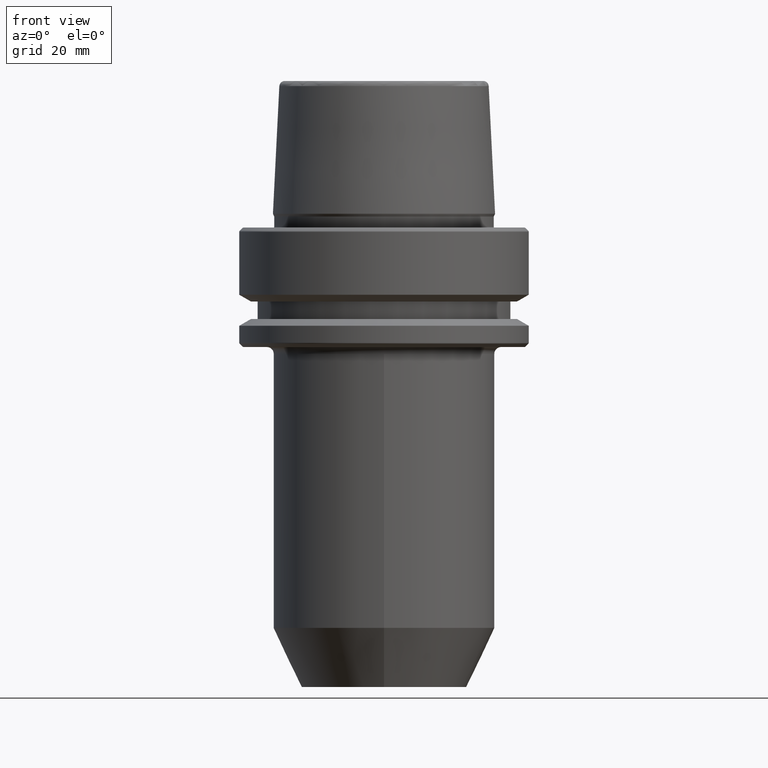
[diagram: clean part render]
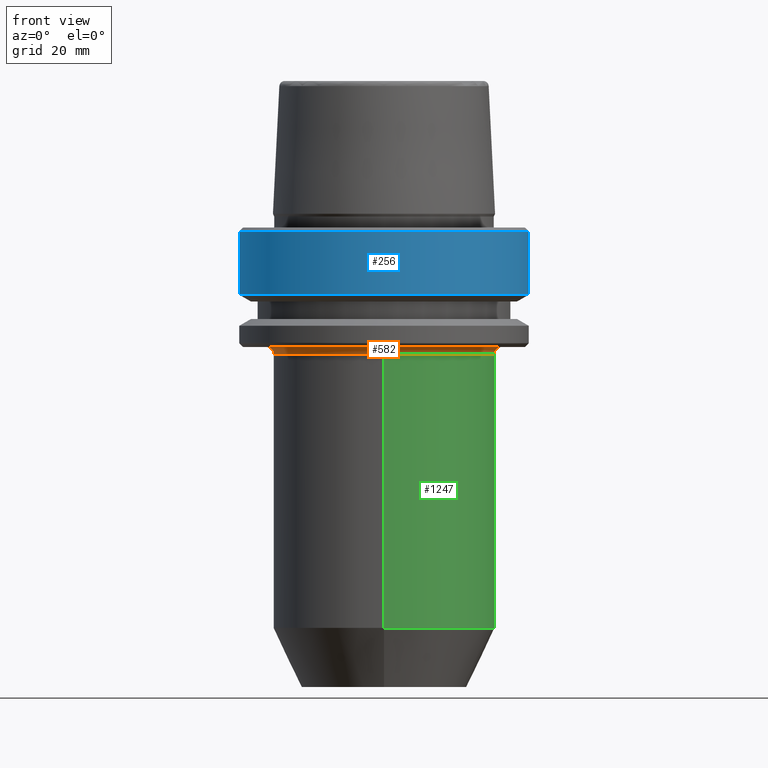
[diagram: same view with three faces highlighted in distinct colors, each labeled with its STEP entity id]
A machine part, front view with three faces highlighted in distinct colors.
Their STEP definitions:

[orange] entity #582 — the highlighted toroidal blend (fillet) surface has major radius 25.5 mm and minor (blend) radius 1.5 mm.
#24 = AXIS2_PLACEMENT_3D ( 'NONE', #739, #143, #836 ) ;
#29 = CARTESIAN_POINT ( 'NONE',  ( 25.50000000000000400, 4.964784320867637100E-017, -27.50000000000001100 ) ) ;
#34 = FACE_OUTER_BOUND ( 'NONE', #1199, .T. ) ;
#38 = AXIS2_PLACEMENT_3D ( 'NONE', #823, #286, #404 ) ;
#86 = DIRECTION ( 'NONE',  ( 1.000000000000000000, 0.0000000000000000000, 0.0000000000000000000 ) ) ;
#128 = CARTESIAN_POINT ( 'NONE',  ( 24.00000000000000000, 4.964784320867637100E-017, -27.50000000000001100 ) ) ;
#138 = ORIENTED_EDGE ( 'NONE', *, *, #702, .T. ) ;
#140 = CARTESIAN_POINT ( 'NONE',  ( 25.50000000000000400, 4.964784320867637100E-017, -26.00000000000001100 ) ) ;
#143 = DIRECTION ( 'NONE',  ( 0.0000000000000000000, 0.0000000000000000000, -1.000000000000000000 ) ) ;
#156 = CARTESIAN_POINT ( 'NONE',  ( -25.50000000000000400, 3.172497181034427300E-015, -27.50000000000001100 ) ) ;
#198 = CIRCLE ( 'NONE', #458, 24.00000000000000000 ) ;
#208 = DIRECTION ( 'NONE',  ( -0.0000000000000000000, -0.0000000000000000000, 1.000000000000000000 ) ) ;
#228 = EDGE_CURVE ( 'NONE', #1061, #1128, #475, .T. ) ;
#247 = DIRECTION ( 'NONE',  ( -1.000000000000000000, 1.224646799147352000E-016, 0.0000000000000000000 ) ) ;
#270 = EDGE_CURVE ( 'NONE', #558, #1061, #378, .T. ) ;
#286 = DIRECTION ( 'NONE',  ( -0.0000000000000000000, -0.0000000000000000000, 1.000000000000000000 ) ) ;
#345 = CARTESIAN_POINT ( 'NONE',  ( 2.939152317953647900E-015, -24.00000000000000000, -27.50000000000001100 ) ) ;
#378 = CIRCLE ( 'NONE', #435, 25.50000000000000400 ) ;
#382 = DIRECTION ( 'NONE',  ( 0.0000000000000000000, 0.0000000000000000000, -1.000000000000000000 ) ) ;
#404 = DIRECTION ( 'NONE',  ( 1.000000000000000000, 0.0000000000000000000, 0.0000000000000000000 ) ) ;
#424 = AXIS2_PLACEMENT_3D ( 'NONE', #156, #846, #247 ) ;
#431 = EDGE_CURVE ( 'NONE', #1128, #471, #198, .T. ) ;
#435 = AXIS2_PLACEMENT_3D ( 'NONE', #800, #208, #902 ) ;
#458 = AXIS2_PLACEMENT_3D ( 'NONE', #1260, #683, #86 ) ;
#471 = VERTEX_POINT ( 'NONE', #345 ) ;
#475 = CIRCLE ( 'NONE', #569, 1.500000000000001300 ) ;
#509 = CIRCLE ( 'NONE', #424, 1.500000000000001300 ) ;
#558 = VERTEX_POINT ( 'NONE', #1148 ) ;
#569 = AXIS2_PLACEMENT_3D ( 'NONE', #29, #979, #382 ) ;
#582 = ADVANCED_FACE ( 'NONE', ( #34 ), #769, .F. ) ;
#616 = CARTESIAN_POINT ( 'NONE',  ( -24.00000000000000000, 3.080648671098375900E-015, -27.50000000000001100 ) ) ;
#643 = VERTEX_POINT ( 'NONE', #616 ) ;
#683 = DIRECTION ( 'NONE',  ( 0.0000000000000000000, 0.0000000000000000000, -1.000000000000000000 ) ) ;
#702 = EDGE_CURVE ( 'NONE', #558, #643, #509, .T. ) ;
#739 = CARTESIAN_POINT ( 'NONE',  ( 0.0000000000000000000, 4.964784320867637100E-017, -27.50000000000001100 ) ) ;
#748 = ORIENTED_EDGE ( 'NONE', *, *, #828, .F. ) ;
#769 = TOROIDAL_SURFACE ( 'NONE', #38, 25.50000000000000400, 1.500000000000000000 ) ;
#800 = CARTESIAN_POINT ( 'NONE',  ( 0.0000000000000000000, 4.964784320867637100E-017, -26.00000000000001100 ) ) ;
#823 = CARTESIAN_POINT ( 'NONE',  ( 0.0000000000000000000, 4.964784320867637100E-017, -27.50000000000001100 ) ) ;
#828 = EDGE_CURVE ( 'NONE', #471, #643, #1235, .T. ) ;
#836 = DIRECTION ( 'NONE',  ( 1.000000000000000000, 0.0000000000000000000, 0.0000000000000000000 ) ) ;
#845 = ORIENTED_EDGE ( 'NONE', *, *, #431, .F. ) ;
#846 = DIRECTION ( 'NONE',  ( 1.224646799147353200E-016, 1.000000000000000000, 0.0000000000000000000 ) ) ;
#902 = DIRECTION ( 'NONE',  ( 1.000000000000000000, 0.0000000000000000000, 0.0000000000000000000 ) ) ;
#979 = DIRECTION ( 'NONE',  ( 0.0000000000000000000, -1.000000000000000000, 0.0000000000000000000 ) ) ;
#1048 = ORIENTED_EDGE ( 'NONE', *, *, #270, .F. ) ;
#1061 = VERTEX_POINT ( 'NONE', #140 ) ;
#1115 = ORIENTED_EDGE ( 'NONE', *, *, #228, .F. ) ;
#1128 = VERTEX_POINT ( 'NONE', #128 ) ;
#1148 = CARTESIAN_POINT ( 'NONE',  ( -25.50000000000000400, 3.172497181034427300E-015, -26.00000000000001100 ) ) ;
#1199 = EDGE_LOOP ( 'NONE', ( #1048, #138, #748, #845, #1115 ) ) ;
#1235 = CIRCLE ( 'NONE', #24, 24.00000000000000000 ) ;
#1260 = CARTESIAN_POINT ( 'NONE',  ( 0.0000000000000000000, 4.964784320867637100E-017, -27.50000000000001100 ) ) ;

[blue] entity #256 — the highlighted cylindrical surface (partial cylindrical patch) has radius 31.5 mm, axis along (-0, -0, 1).
#36 = VERTEX_POINT ( 'NONE', #1269 ) ;
#46 = EDGE_CURVE ( 'NONE', #709, #967, #259, .T. ) ;
#52 = ORIENTED_EDGE ( 'NONE', *, *, #1140, .T. ) ;
#108 = CARTESIAN_POINT ( 'NONE',  ( 0.0000000000000000000, 0.0000000000000000000, 78.96908074195309300 ) ) ;
#176 = CARTESIAN_POINT ( 'NONE',  ( 31.50000000000000700, 0.0000000000000000000, -0.9656854249492363700 ) ) ;
#204 = DIRECTION ( 'NONE',  ( -0.0000000000000000000, -0.0000000000000000000, 1.000000000000000000 ) ) ;
#256 = ADVANCED_FACE ( 'NONE', ( #715 ), #408, .T. ) ;
#259 = CIRCLE ( 'NONE', #338, 31.50000000000000700 ) ;
#261 = EDGE_CURVE ( 'NONE', #949, #709, #1200, .T. ) ;
#338 = AXIS2_PLACEMENT_3D ( 'NONE', #516, #1210, #624 ) ;
#339 = CARTESIAN_POINT ( 'NONE',  ( -31.50000000000000700, 3.857637417314163500E-015, -0.9656854249492363700 ) ) ;
#396 = CARTESIAN_POINT ( 'NONE',  ( -31.50000000000000000, 3.857637417314162700E-015, -14.62250092524070100 ) ) ;
#408 = CYLINDRICAL_SURFACE ( 'NONE', #1246, 31.50000000000000000 ) ;
#416 = DIRECTION ( 'NONE',  ( -0.0000000000000000000, -0.0000000000000000000, 1.000000000000000000 ) ) ;
#427 = ORIENTED_EDGE ( 'NONE', *, *, #998, .T. ) ;
#516 = CARTESIAN_POINT ( 'NONE',  ( 0.0000000000000000000, 0.0000000000000000000, -0.9656854249492363700 ) ) ;
#517 = CARTESIAN_POINT ( 'NONE',  ( 31.50000000000000000, 0.0000000000000000000, 78.96908074195309300 ) ) ;
#542 = CIRCLE ( 'NONE', #917, 31.50000000000000000 ) ;
#554 = EDGE_LOOP ( 'NONE', ( #1117, #427, #52, #1147 ) ) ;
#624 = DIRECTION ( 'NONE',  ( 1.000000000000000000, 0.0000000000000000000, 0.0000000000000000000 ) ) ;
#625 = DIRECTION ( 'NONE',  ( -0.0000000000000000000, -0.0000000000000000000, 1.000000000000000000 ) ) ;
#704 = DIRECTION ( 'NONE',  ( -0.0000000000000000000, -0.0000000000000000000, 1.000000000000000000 ) ) ;
#709 = VERTEX_POINT ( 'NONE', #339 ) ;
#715 = FACE_OUTER_BOUND ( 'NONE', #554, .T. ) ;
#794 = DIRECTION ( 'NONE',  ( 1.000000000000000000, 0.0000000000000000000, 0.0000000000000000000 ) ) ;
#899 = CARTESIAN_POINT ( 'NONE',  ( -31.50000000000000000, 3.857637417314162700E-015, 78.96908074195309300 ) ) ;
#917 = AXIS2_PLACEMENT_3D ( 'NONE', #1007, #416, #1104 ) ;
#930 = LINE ( 'NONE', #517, #1193 ) ;
#936 = VECTOR ( 'NONE', #204, 1000.000000000000000 ) ;
#949 = VERTEX_POINT ( 'NONE', #396 ) ;
#967 = VERTEX_POINT ( 'NONE', #176 ) ;
#998 = EDGE_CURVE ( 'NONE', #949, #36, #542, .T. ) ;
#1007 = CARTESIAN_POINT ( 'NONE',  ( 0.0000000000000000000, 0.0000000000000000000, -14.62250092524070100 ) ) ;
#1104 = DIRECTION ( 'NONE',  ( 1.000000000000000000, 0.0000000000000000000, 0.0000000000000000000 ) ) ;
#1117 = ORIENTED_EDGE ( 'NONE', *, *, #261, .F. ) ;
#1140 = EDGE_CURVE ( 'NONE', #36, #967, #930, .T. ) ;
#1147 = ORIENTED_EDGE ( 'NONE', *, *, #46, .F. ) ;
#1193 = VECTOR ( 'NONE', #625, 1000.000000000000000 ) ;
#1200 = LINE ( 'NONE', #899, #936 ) ;
#1210 = DIRECTION ( 'NONE',  ( -0.0000000000000000000, -0.0000000000000000000, 1.000000000000000000 ) ) ;
#1246 = AXIS2_PLACEMENT_3D ( 'NONE', #108, #704, #794 ) ;
#1269 = CARTESIAN_POINT ( 'NONE',  ( 31.50000000000000000, 0.0000000000000000000, -14.62250092524070100 ) ) ;

[green] entity #1247 — the highlighted cylindrical surface (partial cylindrical patch) has radius 24 mm, axis along (-0, 0, -1).
#53 = CARTESIAN_POINT ( 'NONE',  ( 0.0000000000000000000, 24.00000000000000000, -27.50000000000001100 ) ) ;
#86 = DIRECTION ( 'NONE',  ( 1.000000000000000000, 0.0000000000000000000, 0.0000000000000000000 ) ) ;
#128 = CARTESIAN_POINT ( 'NONE',  ( 24.00000000000000000, 4.964784320867637100E-017, -27.50000000000001100 ) ) ;
#133 = CARTESIAN_POINT ( 'NONE',  ( 2.939152317953647900E-015, -23.99999999999999600, -100.0000000000000000 ) ) ;
#173 = EDGE_CURVE ( 'NONE', #918, #315, #1173, .T. ) ;
#198 = CIRCLE ( 'NONE', #458, 24.00000000000000000 ) ;
#218 = ORIENTED_EDGE ( 'NONE', *, *, #173, .F. ) ;
#257 = ORIENTED_EDGE ( 'NONE', *, *, #1243, .T. ) ;
#310 = CARTESIAN_POINT ( 'NONE',  ( 0.0000000000000000000, 2.023413024897183500E-015, -87.13295847694257600 ) ) ;
#315 = VERTEX_POINT ( 'NONE', #374 ) ;
#345 = CARTESIAN_POINT ( 'NONE',  ( 2.939152317953647900E-015, -24.00000000000000000, -27.50000000000001100 ) ) ;
#374 = CARTESIAN_POINT ( 'NONE',  ( 0.0000000000000000000, -23.99999999999999300, -87.13295847694257600 ) ) ;
#398 = EDGE_CURVE ( 'NONE', #511, #918, #1099, .T. ) ;
#418 = DIRECTION ( 'NONE',  ( 0.0000000000000000000, 1.000000000000000000, 0.0000000000000000000 ) ) ;
#431 = EDGE_CURVE ( 'NONE', #1128, #471, #198, .T. ) ;
#458 = AXIS2_PLACEMENT_3D ( 'NONE', #1260, #683, #86 ) ;
#471 = VERTEX_POINT ( 'NONE', #345 ) ;
#485 = CARTESIAN_POINT ( 'NONE',  ( 0.0000000000000000000, 2.449293598294707300E-015, -100.0000000000000000 ) ) ;
#508 = FACE_OUTER_BOUND ( 'NONE', #677, .T. ) ;
#511 = VERTEX_POINT ( 'NONE', #53 ) ;
#523 = DIRECTION ( 'NONE',  ( -0.0000000000000000000, 3.309856213911766700E-017, -1.000000000000000000 ) ) ;
#550 = VECTOR ( 'NONE', #900, 1000.000000000000000 ) ;
#572 = CARTESIAN_POINT ( 'NONE',  ( 0.0000000000000000000, 4.964784320867637100E-017, -27.50000000000001100 ) ) ;
#594 = ORIENTED_EDGE ( 'NONE', *, *, #431, .T. ) ;
#607 = CARTESIAN_POINT ( 'NONE',  ( 2.939152317953647500E-015, 24.00000000000000000, -87.13295847694257600 ) ) ;
#675 = DIRECTION ( 'NONE',  ( 1.000000000000000000, 0.0000000000000000000, 0.0000000000000000000 ) ) ;
#677 = EDGE_LOOP ( 'NONE', ( #257, #594, #887, #218, #712 ) ) ;
#683 = DIRECTION ( 'NONE',  ( 0.0000000000000000000, 0.0000000000000000000, -1.000000000000000000 ) ) ;
#712 = ORIENTED_EDGE ( 'NONE', *, *, #398, .F. ) ;
#723 = VECTOR ( 'NONE', #523, 1000.000000000000000 ) ;
#730 = AXIS2_PLACEMENT_3D ( 'NONE', #485, #1065, #1050 ) ;
#751 = CYLINDRICAL_SURFACE ( 'NONE', #730, 24.00000000000000000 ) ;
#764 = EDGE_CURVE ( 'NONE', #471, #315, #980, .T. ) ;
#788 = AXIS2_PLACEMENT_3D ( 'NONE', #572, #1250, #675 ) ;
#887 = ORIENTED_EDGE ( 'NONE', *, *, #764, .T. ) ;
#900 = DIRECTION ( 'NONE',  ( -0.0000000000000000000, 3.309856213911766700E-017, -1.000000000000000000 ) ) ;
#918 = VERTEX_POINT ( 'NONE', #607 ) ;
#980 = LINE ( 'NONE', #133, #723 ) ;
#1009 = DIRECTION ( 'NONE',  ( -0.0000000000000000000, 3.309856213911766700E-017, -1.000000000000000000 ) ) ;
#1025 = AXIS2_PLACEMENT_3D ( 'NONE', #310, #1009, #418 ) ;
#1050 = DIRECTION ( 'NONE',  ( 0.0000000000000000000, 1.000000000000000000, 0.0000000000000000000 ) ) ;
#1065 = DIRECTION ( 'NONE',  ( -0.0000000000000000000, 3.309856213911766700E-017, -1.000000000000000000 ) ) ;
#1087 = CARTESIAN_POINT ( 'NONE',  ( 0.0000000000000000000, 24.00000000000000400, -100.0000000000000000 ) ) ;
#1099 = LINE ( 'NONE', #1087, #550 ) ;
#1128 = VERTEX_POINT ( 'NONE', #128 ) ;
#1173 = CIRCLE ( 'NONE', #1025, 23.99999999999999600 ) ;
#1243 = EDGE_CURVE ( 'NONE', #511, #1128, #1264, .T. ) ;
#1247 = ADVANCED_FACE ( 'NONE', ( #508 ), #751, .T. ) ;
#1250 = DIRECTION ( 'NONE',  ( 0.0000000000000000000, 0.0000000000000000000, -1.000000000000000000 ) ) ;
#1260 = CARTESIAN_POINT ( 'NONE',  ( 0.0000000000000000000, 4.964784320867637100E-017, -27.50000000000001100 ) ) ;
#1264 = CIRCLE ( 'NONE', #788, 24.00000000000000000 ) ;